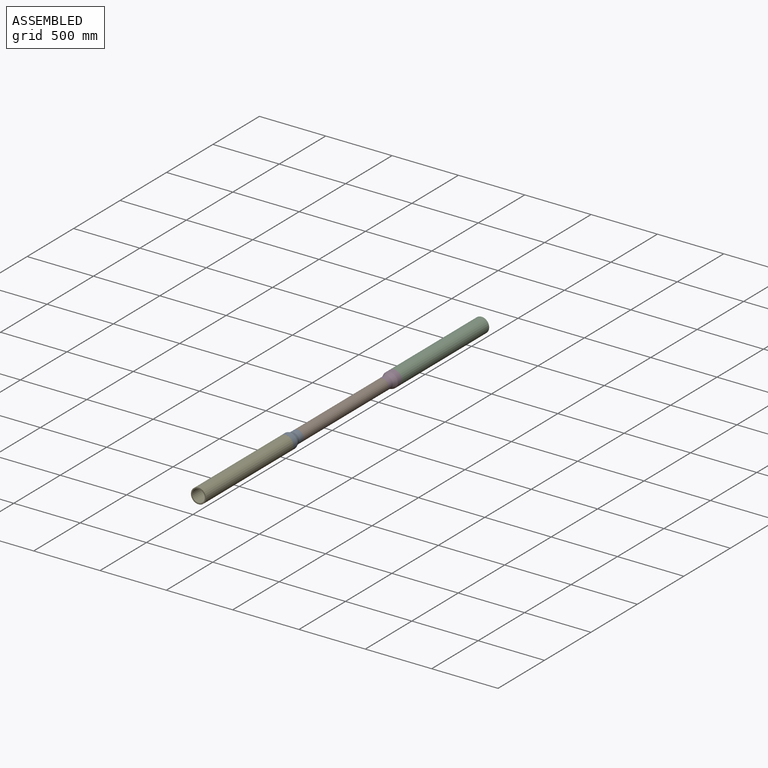
[diagram: assembled view]
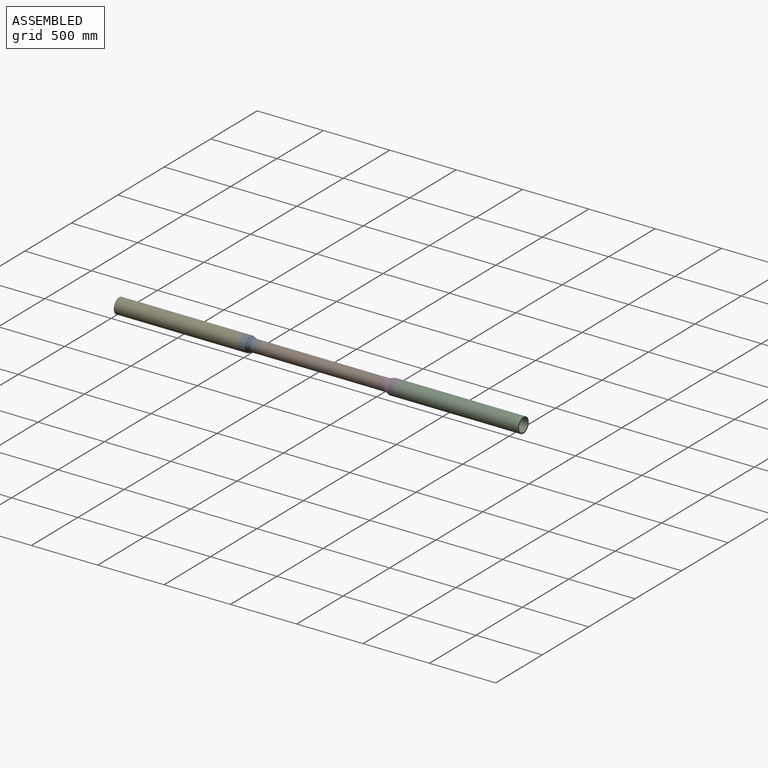
[diagram: assembled view, second angle]
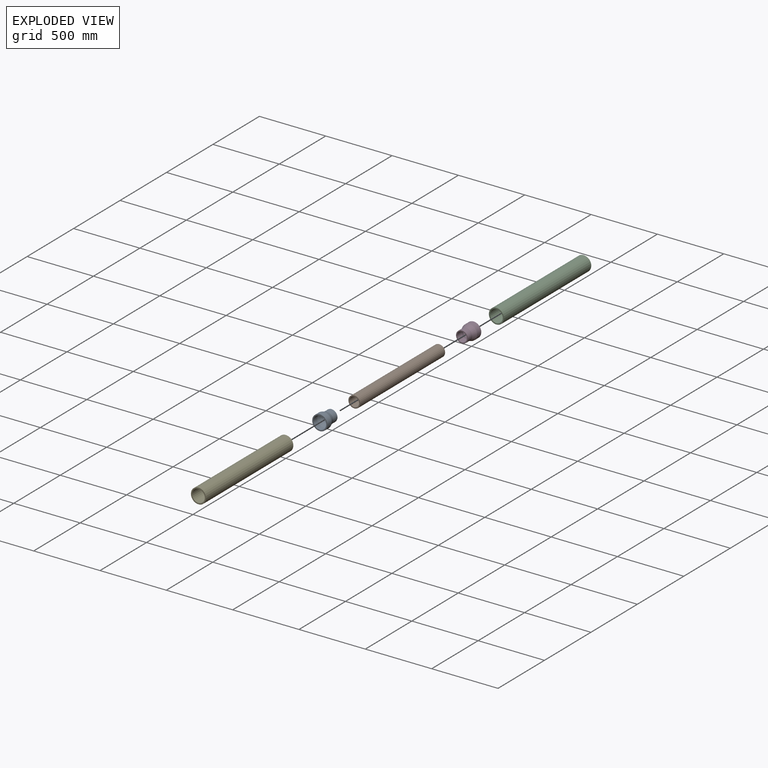
[diagram: exploded view]
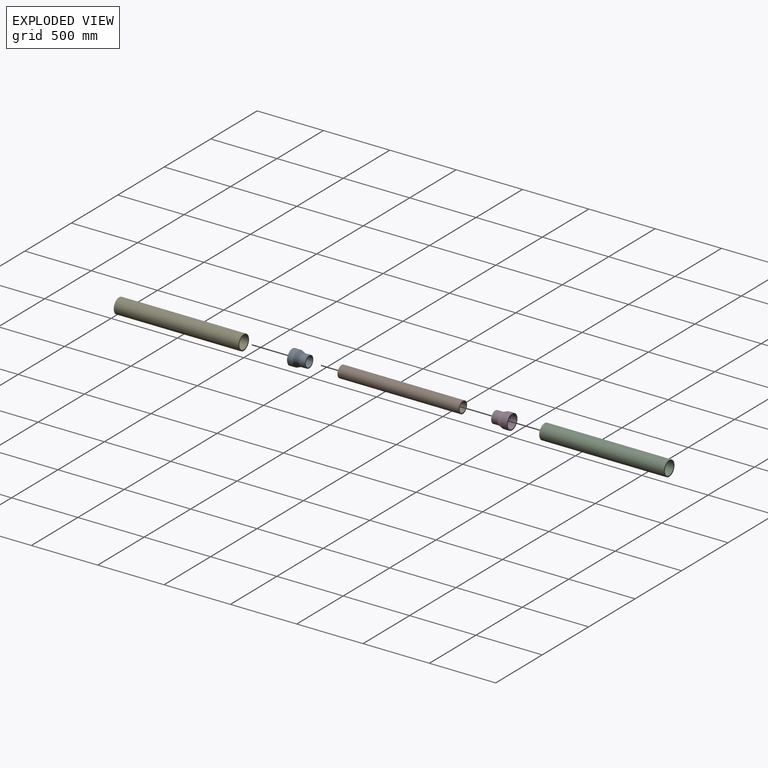
[diagram: exploded view, second angle]
ASSEMBLY  parts=5 mates=4
PART A: 8 faces, bbox 127x114.3x114.3 mm
  f0: cylinder r=57.15mm len=114.3mm, axis (-1,0,0), area 16158.8mm2, adj f1,f7
  f1: cone r=57.15mm half-angle=20deg, axis (1,0,0), area 11852.1mm2, adj f0,f2
  f2: cylinder r=44.45mm len=88.9mm, axis (-1,0,0), area 13156.4mm2, adj f1,f3
  f3: plane 88.9x88.9mm, normal (-1,0,0), area 1945.8mm2, adj f2,f4
  f4: cylinder r=36.83mm len=73.66mm, axis (-1,0,0), area 12145.7mm2, adj f3,f5
  f5: cone r=48.59mm half-angle=20deg, axis (1,0,0), area 9227.3mm2, adj f4,f6
  f6: cylinder r=48.59mm len=97.18mm, axis (-1,0,0), area 12884.8mm2, adj f5,f7
  f7: plane 114.3x114.3mm, normal (1,0,0), area 2843.5mm2, adj f0,f6
PART B: 4 faces, bbox 88.9x914.4x88.9 mm
  f0: cylinder r=36.37mm len=914.4mm, axis (0,1,0), area 208974.3mm2, adj f2,f3
  f1: cylinder r=44.45mm len=914.4mm, axis (0,1,0), area 255380.6mm2, adj f2,f3
  f2: plane 88.9x88.9mm, normal (0,-1,0), area 2050.9mm2, adj f0,f1
  f3: plane 88.9x88.9mm, normal (0,1,0), area 2050.9mm2, adj f0,f1
PART C: 4 faces, bbox 114.3x939.8x114.3 mm
  f0: cylinder r=48.08mm len=939.8mm, axis (0,1,0), area 283922.4mm2, adj f2,f3
  f1: cylinder r=57.15mm len=939.8mm, axis (0,1,0), area 337467.2mm2, adj f2,f3
  f2: plane 114.3x114.3mm, normal (0,-1,0), area 2997.8mm2, adj f0,f1
  f3: plane 114.3x114.3mm, normal (0,1,0), area 2997.8mm2, adj f0,f1
PART D: same geometry as A
PART E: same geometry as C
PLACE A rot(axis=(0.58,-0.58,-0.58),120deg) t=(0,127,0)mm
PLACE B t=(0,1041.4,0)mm
PLACE C t=(0,2108.2,0)mm
PLACE D rot(axis=(0.58,0.58,0.58),120deg) t=(0,1041.4,0)mm
PLACE E at identity fixed
MATE fastened B.f0 <-> D.f0  axis (0,1,0) through (0,1041.4,0)mm
MATE fastened C.f0 <-> D.f0  axis (0,-1,0) through (0,1168.4,0)mm
MATE fastened E.f0 <-> A.f0  axis (0,1,0) through (0,0,0)mm
MATE fastened A.f0 <-> B.f0  axis (0,1,0) through (0,127,0)mm
